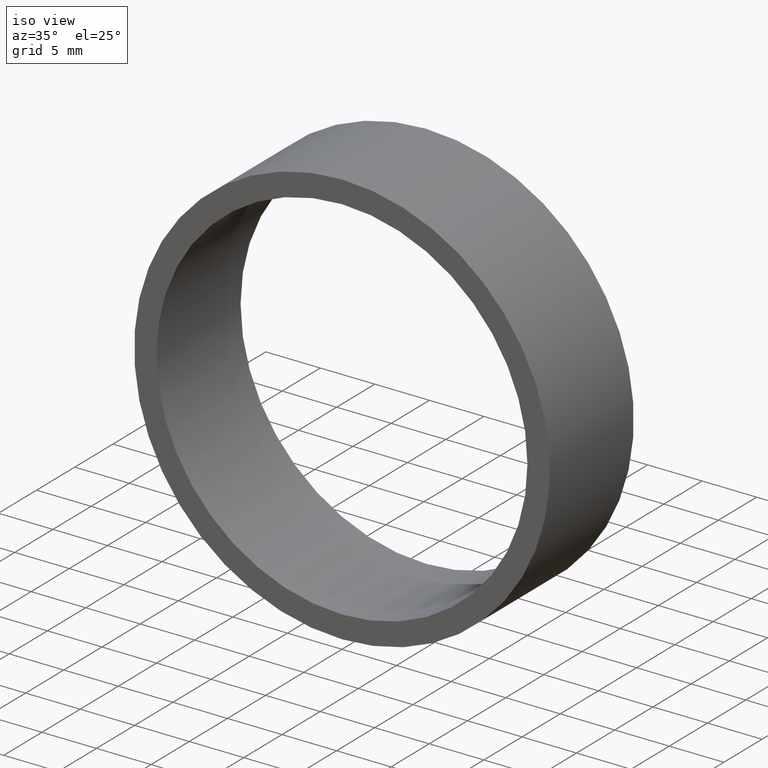
[diagram: clean part render]
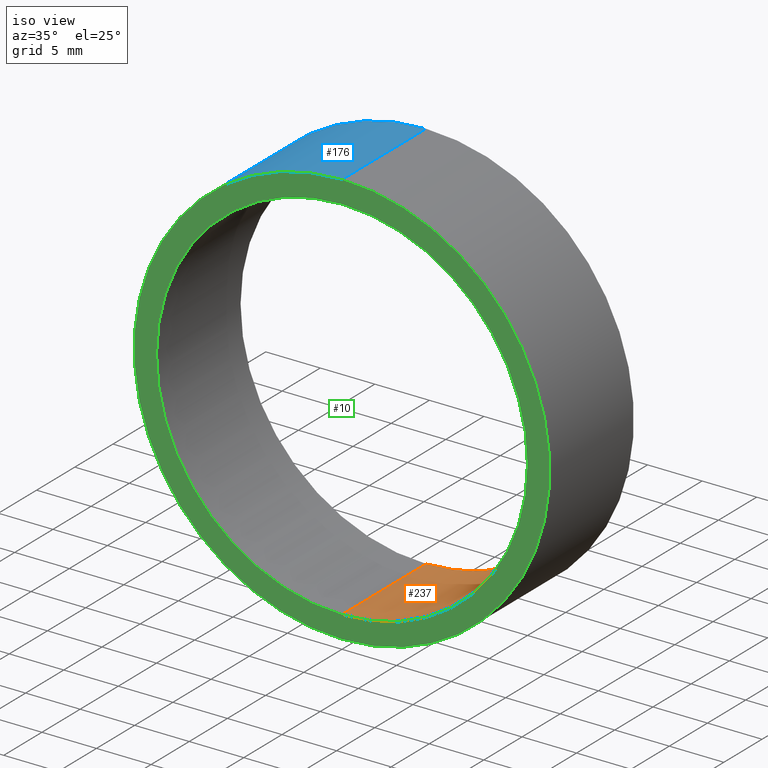
[diagram: same view with three faces highlighted in distinct colors, each labeled with its STEP entity id]
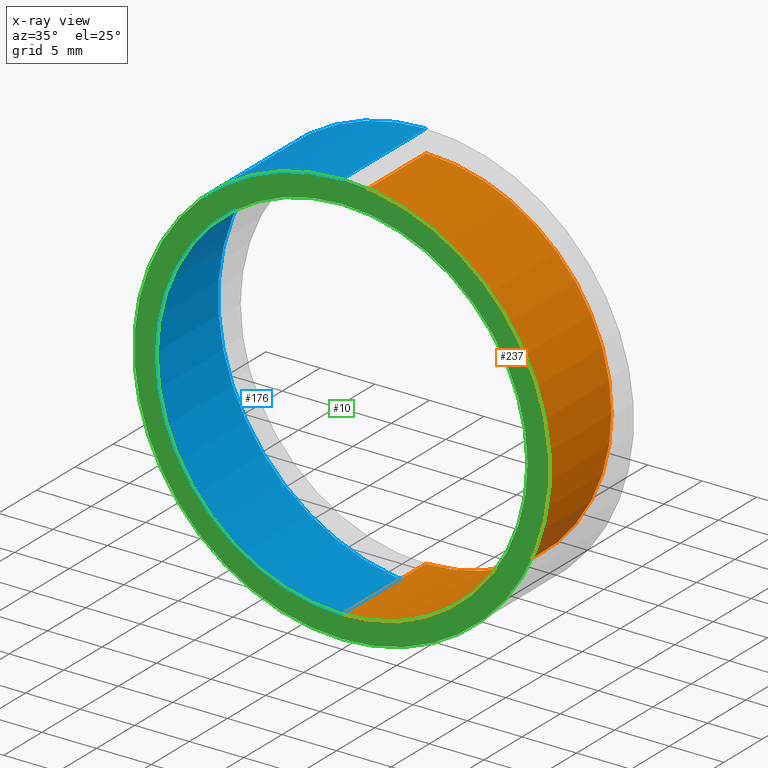
[diagram: x-ray of the same camera — body ghosted, the three highlighted faces saturated]
A machine part, iso view with three faces highlighted in distinct colors.
The next image is the same camera in x-ray (body ghosted, the three faces saturated) — at least one of them is partly hidden behind the body in this view.
Their STEP definitions:

[orange] entity #237 — the highlighted cylindrical surface (partial cylindrical patch) has radius 17 mm, axis along (-0, -1, -0).
#3 = EDGE_CURVE ( 'NONE', #229, #156, #155, .T. ) ;
#4 = VERTEX_POINT ( 'NONE', #63 ) ;
#7 = VERTEX_POINT ( 'NONE', #48 ) ;
#16 = AXIS2_PLACEMENT_3D ( 'NONE', #227, #90, #57 ) ;
#34 = AXIS2_PLACEMENT_3D ( 'NONE', #153, #96, #174 ) ;
#38 = LINE ( 'NONE', #111, #98 ) ;
#44 = ORIENTED_EDGE ( 'NONE', *, *, #3, .F. ) ;
#48 = CARTESIAN_POINT ( 'NONE',  ( 2.081899558550500300E-015, 11.00000000000000000, 17.00000000000000000 ) ) ;
#57 = DIRECTION ( 'NONE',  ( 0.0000000000000000000, 0.0000000000000000000, 1.000000000000000000 ) ) ;
#59 = VECTOR ( 'NONE', #203, 1000.000000000000000 ) ;
#63 = CARTESIAN_POINT ( 'NONE',  ( 0.0000000000000000000, 11.00000000000000000, -17.00000000000000000 ) ) ;
#64 = ORIENTED_EDGE ( 'NONE', *, *, #239, .T. ) ;
#72 = CARTESIAN_POINT ( 'NONE',  ( 2.081899558550500300E-015, 11.00000000000000000, 17.00000000000000000 ) ) ;
#80 = EDGE_LOOP ( 'NONE', ( #103, #232, #64, #44 ) ) ;
#90 = DIRECTION ( 'NONE',  ( 0.0000000000000000000, 1.000000000000000000, 0.0000000000000000000 ) ) ;
#94 = DIRECTION ( 'NONE',  ( 0.0000000000000000000, 1.000000000000000000, 0.0000000000000000000 ) ) ;
#96 = DIRECTION ( 'NONE',  ( -0.0000000000000000000, -1.000000000000000000, -0.0000000000000000000 ) ) ;
#98 = VECTOR ( 'NONE', #214, 1000.000000000000000 ) ;
#100 = FACE_OUTER_BOUND ( 'NONE', #80, .T. ) ;
#101 = DIRECTION ( 'NONE',  ( 0.0000000000000000000, 0.0000000000000000000, 1.000000000000000000 ) ) ;
#103 = ORIENTED_EDGE ( 'NONE', *, *, #193, .F. ) ;
#107 = CIRCLE ( 'NONE', #16, 17.00000000000000000 ) ;
#111 = CARTESIAN_POINT ( 'NONE',  ( 0.0000000000000000000, 11.00000000000000000, -17.00000000000000000 ) ) ;
#121 = CARTESIAN_POINT ( 'NONE',  ( 0.0000000000000000000, 0.0000000000000000000, -17.00000000000000000 ) ) ;
#145 = CARTESIAN_POINT ( 'NONE',  ( 2.081899558550500300E-015, 0.0000000000000000000, 17.00000000000000000 ) ) ;
#153 = CARTESIAN_POINT ( 'NONE',  ( 0.0000000000000000000, 11.00000000000000000, 0.0000000000000000000 ) ) ;
#155 = CIRCLE ( 'NONE', #169, 17.00000000000000000 ) ;
#156 = VERTEX_POINT ( 'NONE', #121 ) ;
#169 = AXIS2_PLACEMENT_3D ( 'NONE', #185, #94, #101 ) ;
#174 = DIRECTION ( 'NONE',  ( 0.0000000000000000000, 0.0000000000000000000, -1.000000000000000000 ) ) ;
#185 = CARTESIAN_POINT ( 'NONE',  ( 0.0000000000000000000, 0.0000000000000000000, 0.0000000000000000000 ) ) ;
#193 = EDGE_CURVE ( 'NONE', #7, #229, #211, .T. ) ;
#194 = EDGE_CURVE ( 'NONE', #7, #4, #107, .T. ) ;
#203 = DIRECTION ( 'NONE',  ( -0.0000000000000000000, -1.000000000000000000, -0.0000000000000000000 ) ) ;
#211 = LINE ( 'NONE', #72, #59 ) ;
#214 = DIRECTION ( 'NONE',  ( -0.0000000000000000000, -1.000000000000000000, -0.0000000000000000000 ) ) ;
#227 = CARTESIAN_POINT ( 'NONE',  ( 0.0000000000000000000, 11.00000000000000000, 0.0000000000000000000 ) ) ;
#229 = VERTEX_POINT ( 'NONE', #145 ) ;
#230 = CYLINDRICAL_SURFACE ( 'NONE', #34, 17.00000000000000000 ) ;
#232 = ORIENTED_EDGE ( 'NONE', *, *, #194, .T. ) ;
#237 = ADVANCED_FACE ( 'NONE', ( #100 ), #230, .F. ) ;
#239 = EDGE_CURVE ( 'NONE', #4, #156, #38, .T. ) ;

[blue] entity #176 — the highlighted cylindrical surface (partial cylindrical patch) has radius 19.05 mm, axis along (-0, -1, -0).
#2 = ORIENTED_EDGE ( 'NONE', *, *, #179, .F. ) ;
#5 = CIRCLE ( 'NONE', #128, 19.05000000000000100 ) ;
#14 = VECTOR ( 'NONE', #216, 1000.000000000000000 ) ;
#17 = ORIENTED_EDGE ( 'NONE', *, *, #190, .T. ) ;
#20 = VERTEX_POINT ( 'NONE', #189 ) ;
#25 = CARTESIAN_POINT ( 'NONE',  ( 2.332952152375708000E-015, 0.0000000000000000000, 19.05000000000000100 ) ) ;
#30 = ORIENTED_EDGE ( 'NONE', *, *, #133, .F. ) ;
#32 = FACE_OUTER_BOUND ( 'NONE', #114, .T. ) ;
#39 = CARTESIAN_POINT ( 'NONE',  ( 0.0000000000000000000, 11.00000000000000000, -19.05000000000000100 ) ) ;
#41 = LINE ( 'NONE', #39, #14 ) ;
#49 = DIRECTION ( 'NONE',  ( 0.0000000000000000000, 0.0000000000000000000, 1.000000000000000000 ) ) ;
#56 = VECTOR ( 'NONE', #188, 1000.000000000000000 ) ;
#99 = DIRECTION ( 'NONE',  ( 0.0000000000000000000, 1.000000000000000000, 0.0000000000000000000 ) ) ;
#105 = LINE ( 'NONE', #191, #56 ) ;
#113 = CARTESIAN_POINT ( 'NONE',  ( 2.332952152375708000E-015, 11.00000000000000000, 19.05000000000000100 ) ) ;
#114 = EDGE_LOOP ( 'NONE', ( #2, #30, #207, #17 ) ) ;
#115 = AXIS2_PLACEMENT_3D ( 'NONE', #243, #223, #49 ) ;
#123 = CARTESIAN_POINT ( 'NONE',  ( 0.0000000000000000000, 0.0000000000000000000, 0.0000000000000000000 ) ) ;
#128 = AXIS2_PLACEMENT_3D ( 'NONE', #123, #99, #178 ) ;
#133 = EDGE_CURVE ( 'NONE', #221, #168, #144, .T. ) ;
#135 = DIRECTION ( 'NONE',  ( 0.0000000000000000000, 0.0000000000000000000, -1.000000000000000000 ) ) ;
#138 = VERTEX_POINT ( 'NONE', #25 ) ;
#144 = CIRCLE ( 'NONE', #115, 19.05000000000000100 ) ;
#160 = CARTESIAN_POINT ( 'NONE',  ( 0.0000000000000000000, 11.00000000000000000, -19.05000000000000100 ) ) ;
#168 = VERTEX_POINT ( 'NONE', #113 ) ;
#171 = CYLINDRICAL_SURFACE ( 'NONE', #228, 19.05000000000000100 ) ;
#172 = DIRECTION ( 'NONE',  ( -0.0000000000000000000, -1.000000000000000000, -0.0000000000000000000 ) ) ;
#176 = ADVANCED_FACE ( 'NONE', ( #32 ), #171, .T. ) ;
#178 = DIRECTION ( 'NONE',  ( 0.0000000000000000000, 0.0000000000000000000, 1.000000000000000000 ) ) ;
#179 = EDGE_CURVE ( 'NONE', #168, #138, #105, .T. ) ;
#188 = DIRECTION ( 'NONE',  ( -0.0000000000000000000, -1.000000000000000000, -0.0000000000000000000 ) ) ;
#189 = CARTESIAN_POINT ( 'NONE',  ( 0.0000000000000000000, 0.0000000000000000000, -19.05000000000000100 ) ) ;
#190 = EDGE_CURVE ( 'NONE', #20, #138, #5, .T. ) ;
#191 = CARTESIAN_POINT ( 'NONE',  ( 2.332952152375708000E-015, 11.00000000000000000, 19.05000000000000100 ) ) ;
#199 = CARTESIAN_POINT ( 'NONE',  ( 0.0000000000000000000, 11.00000000000000000, 0.0000000000000000000 ) ) ;
#200 = EDGE_CURVE ( 'NONE', #221, #20, #41, .T. ) ;
#207 = ORIENTED_EDGE ( 'NONE', *, *, #200, .T. ) ;
#216 = DIRECTION ( 'NONE',  ( -0.0000000000000000000, -1.000000000000000000, -0.0000000000000000000 ) ) ;
#221 = VERTEX_POINT ( 'NONE', #160 ) ;
#223 = DIRECTION ( 'NONE',  ( 0.0000000000000000000, 1.000000000000000000, 0.0000000000000000000 ) ) ;
#228 = AXIS2_PLACEMENT_3D ( 'NONE', #199, #172, #135 ) ;
#243 = CARTESIAN_POINT ( 'NONE',  ( 0.0000000000000000000, 11.00000000000000000, 0.0000000000000000000 ) ) ;

[green] entity #10 — the highlighted planar face has unit normal (0, 1, 0).
#3 = EDGE_CURVE ( 'NONE', #229, #156, #155, .T. ) ;
#5 = CIRCLE ( 'NONE', #128, 19.05000000000000100 ) ;
#10 = ADVANCED_FACE ( 'NONE', ( #84, #218 ), #68, .F. ) ;
#18 = AXIS2_PLACEMENT_3D ( 'NONE', #213, #85, #67 ) ;
#19 = CIRCLE ( 'NONE', #18, 17.00000000000000000 ) ;
#20 = VERTEX_POINT ( 'NONE', #189 ) ;
#21 = EDGE_LOOP ( 'NONE', ( #146, #52 ) ) ;
#25 = CARTESIAN_POINT ( 'NONE',  ( 2.332952152375708000E-015, 0.0000000000000000000, 19.05000000000000100 ) ) ;
#52 = ORIENTED_EDGE ( 'NONE', *, *, #79, .F. ) ;
#61 = ORIENTED_EDGE ( 'NONE', *, *, #3, .T. ) ;
#67 = DIRECTION ( 'NONE',  ( 0.0000000000000000000, 0.0000000000000000000, 1.000000000000000000 ) ) ;
#68 = PLANE ( 'NONE',  #177 ) ;
#79 = EDGE_CURVE ( 'NONE', #138, #20, #82, .T. ) ;
#82 = CIRCLE ( 'NONE', #93, 19.05000000000000100 ) ;
#84 = FACE_OUTER_BOUND ( 'NONE', #21, .T. ) ;
#85 = DIRECTION ( 'NONE',  ( 0.0000000000000000000, 1.000000000000000000, 0.0000000000000000000 ) ) ;
#93 = AXIS2_PLACEMENT_3D ( 'NONE', #134, #108, #132 ) ;
#94 = DIRECTION ( 'NONE',  ( 0.0000000000000000000, 1.000000000000000000, 0.0000000000000000000 ) ) ;
#99 = DIRECTION ( 'NONE',  ( 0.0000000000000000000, 1.000000000000000000, 0.0000000000000000000 ) ) ;
#101 = DIRECTION ( 'NONE',  ( 0.0000000000000000000, 0.0000000000000000000, 1.000000000000000000 ) ) ;
#102 = DIRECTION ( 'NONE',  ( 0.0000000000000000000, 1.000000000000000000, 0.0000000000000000000 ) ) ;
#104 = CARTESIAN_POINT ( 'NONE',  ( 0.0000000000000000000, 0.0000000000000000000, 0.0000000000000000000 ) ) ;
#108 = DIRECTION ( 'NONE',  ( 0.0000000000000000000, 1.000000000000000000, 0.0000000000000000000 ) ) ;
#109 = EDGE_LOOP ( 'NONE', ( #165, #61 ) ) ;
#121 = CARTESIAN_POINT ( 'NONE',  ( 0.0000000000000000000, 0.0000000000000000000, -17.00000000000000000 ) ) ;
#123 = CARTESIAN_POINT ( 'NONE',  ( 0.0000000000000000000, 0.0000000000000000000, 0.0000000000000000000 ) ) ;
#128 = AXIS2_PLACEMENT_3D ( 'NONE', #123, #99, #178 ) ;
#132 = DIRECTION ( 'NONE',  ( 0.0000000000000000000, 0.0000000000000000000, 1.000000000000000000 ) ) ;
#134 = CARTESIAN_POINT ( 'NONE',  ( 0.0000000000000000000, 0.0000000000000000000, 0.0000000000000000000 ) ) ;
#138 = VERTEX_POINT ( 'NONE', #25 ) ;
#145 = CARTESIAN_POINT ( 'NONE',  ( 2.081899558550500300E-015, 0.0000000000000000000, 17.00000000000000000 ) ) ;
#146 = ORIENTED_EDGE ( 'NONE', *, *, #190, .F. ) ;
#155 = CIRCLE ( 'NONE', #169, 17.00000000000000000 ) ;
#156 = VERTEX_POINT ( 'NONE', #121 ) ;
#165 = ORIENTED_EDGE ( 'NONE', *, *, #204, .T. ) ;
#169 = AXIS2_PLACEMENT_3D ( 'NONE', #185, #94, #101 ) ;
#177 = AXIS2_PLACEMENT_3D ( 'NONE', #104, #102, #224 ) ;
#178 = DIRECTION ( 'NONE',  ( 0.0000000000000000000, 0.0000000000000000000, 1.000000000000000000 ) ) ;
#185 = CARTESIAN_POINT ( 'NONE',  ( 0.0000000000000000000, 0.0000000000000000000, 0.0000000000000000000 ) ) ;
#189 = CARTESIAN_POINT ( 'NONE',  ( 0.0000000000000000000, 0.0000000000000000000, -19.05000000000000100 ) ) ;
#190 = EDGE_CURVE ( 'NONE', #20, #138, #5, .T. ) ;
#204 = EDGE_CURVE ( 'NONE', #156, #229, #19, .T. ) ;
#213 = CARTESIAN_POINT ( 'NONE',  ( 0.0000000000000000000, 0.0000000000000000000, 0.0000000000000000000 ) ) ;
#218 = FACE_BOUND ( 'NONE', #109, .T. ) ;
#224 = DIRECTION ( 'NONE',  ( 0.0000000000000000000, -0.0000000000000000000, 1.000000000000000000 ) ) ;
#229 = VERTEX_POINT ( 'NONE', #145 ) ;